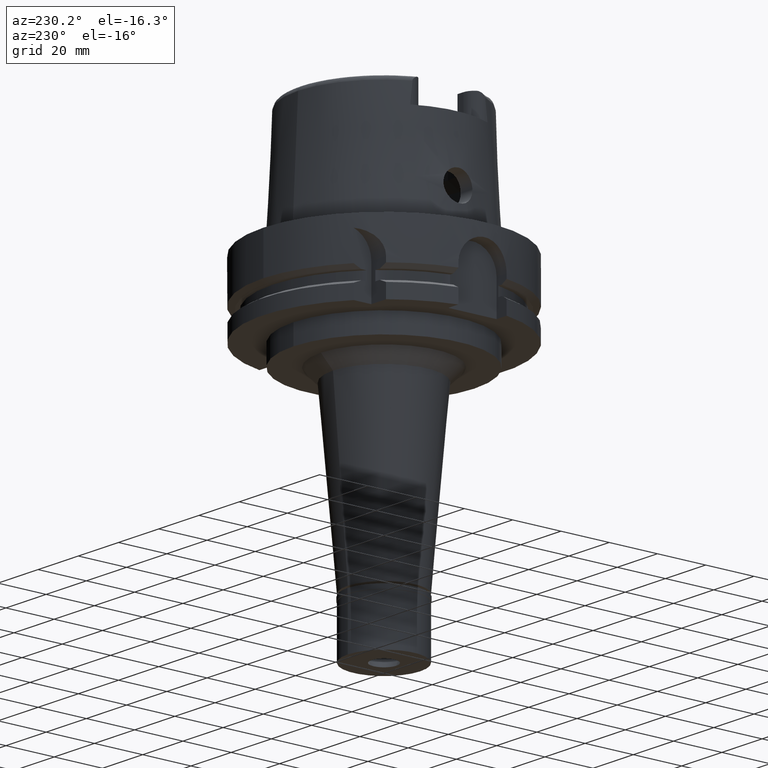
[diagram: clean part render]
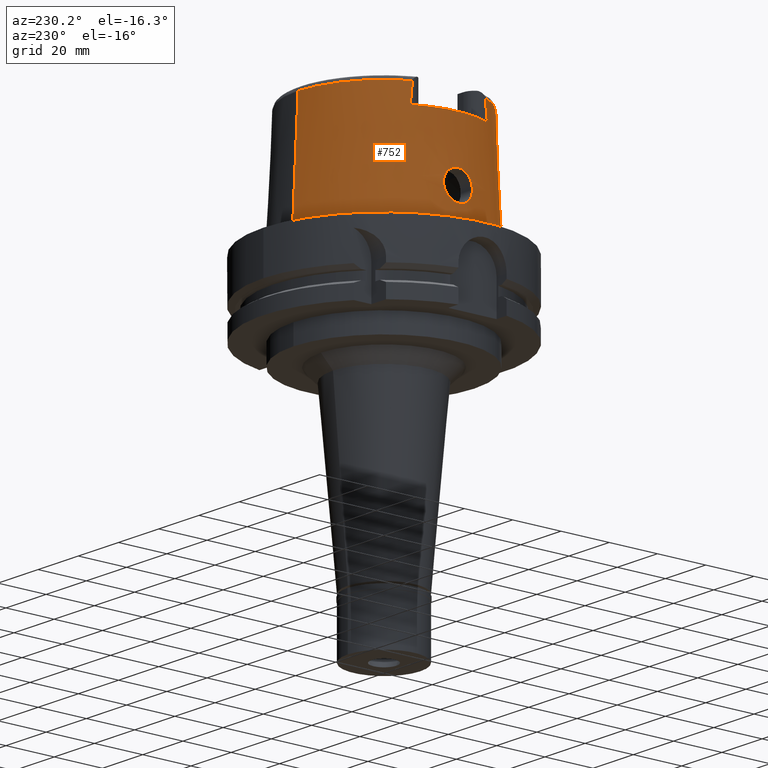
[diagram: same view with one face highlighted and labeled with its STEP entity id]
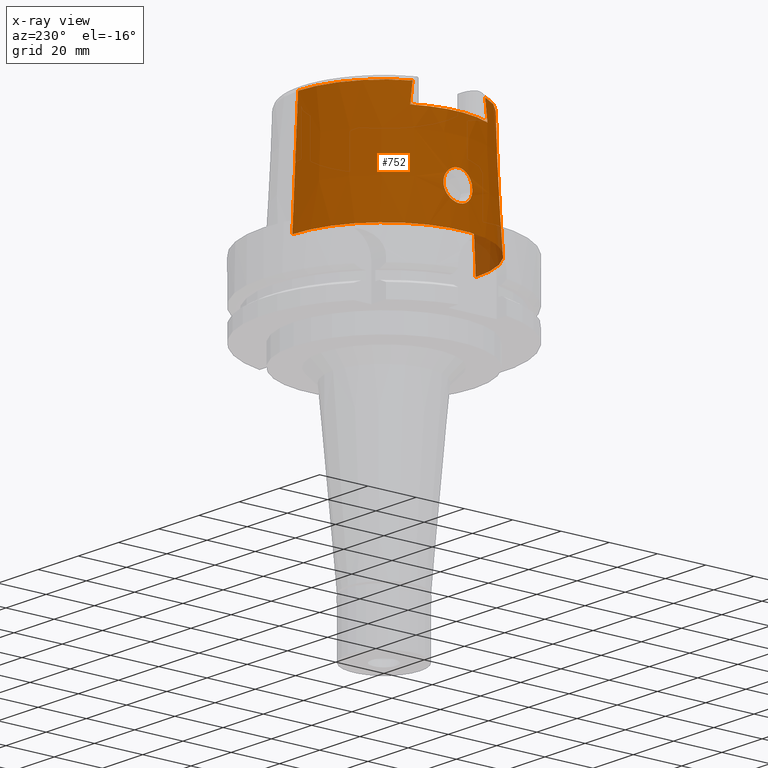
[diagram: x-ray of the same camera — body ghosted, the highlighted face saturated]
A machine part, auxiliary view. The second image highlights one B-rep face of the part: STEP entity #752.
The next image is the same camera in x-ray: the body ghosted, the highlighted face saturated — about 3% of this face is hidden behind the body in this view.
In plain terms, the highlighted conical surface has half-angle 2.862 deg.
Its self-contained STEP definition (entity closure, byte-faithful):
#2 = CARTESIAN_POINT ( 'NONE',  ( -36.90481212202828942, 2.213017015193649240, 20.57707526478865034 ) ) ;
#83 = FACE_OUTER_BOUND ( 'NONE', #288, .T. ) ;
#88 = CARTESIAN_POINT ( 'NONE',  ( -37.31741571978165695, -3.598214547009094932, 10.19462941988702553 ) ) ;
#91 = CARTESIAN_POINT ( 'NONE',  ( -36.86978944967720651, 5.813435440290711576, 13.50148772606871006 ) ) ;
#111 = DIRECTION ( 'NONE',  ( 0.0000000000000000000, 0.0000000000000000000, 1.000000000000000000 ) ) ;
#115 = CARTESIAN_POINT ( 'NONE',  ( -36.93090540727234128, 5.616884504841480386, 12.88920794889838817 ) ) ;
#144 = CARTESIAN_POINT ( 'NONE',  ( -37.07783556627382637, 5.011406950699154983, 11.70060644770868663 ) ) ;
#175 = VERTEX_POINT ( 'NONE', #1553 ) ;
#176 = CARTESIAN_POINT ( 'NONE',  ( -37.17951738003090156, 4.485048633861581813, 11.01234580963012277 ) ) ;
#191 = CARTESIAN_POINT ( 'NONE',  ( -0.002482252536761000127, -35.59494263424999616, 48.09987853799000135 ) ) ;
#193 = CARTESIAN_POINT ( 'NONE',  ( -36.76465636133605130, -6.000010175707378046, 14.97902396965996630 ) ) ;
#197 = CARTESIAN_POINT ( 'NONE',  ( -36.80183279211876624, 4.126309752871399894, 19.35635293013562830 ) ) ;
#210 = ORIENTED_EDGE ( 'NONE', *, *, #547, .F. ) ;
#215 = CARTESIAN_POINT ( 'NONE',  ( -36.74425309224630354, -5.999826609767888286, 15.38207182257049332 ) ) ;
#249 = CARTESIAN_POINT ( 'NONE',  ( -36.88084531410436995, -2.757777458081136945, 20.32957532073009688 ) ) ;
#255 = CARTESIAN_POINT ( 'NONE',  ( -37.37937778061014882, 3.098023693041446869, 9.857887865745889044 ) ) ;
#278 = CARTESIAN_POINT ( 'NONE',  ( -36.94998175923000616, 0.0000000000000000000, 21.00000000000000000 ) ) ;
#288 = EDGE_LOOP ( 'NONE', ( #5145, #3509, #3070, #4621, #2814, #847, #5060, #4590 ) ) ;
#295 = CARTESIAN_POINT ( 'NONE',  ( -32.24999876011999334, -15.99794043148000000, 40.00000000000000000 ) ) ;
#303 = CARTESIAN_POINT ( 'NONE',  ( -37.03927165331953120, -5.187383057074109516, 11.97837676321351097 ) ) ;
#309 = CARTESIAN_POINT ( 'NONE',  ( -37.21451943619346281, 4.281912244114014499, 10.79697969299898297 ) ) ;
#435 = CARTESIAN_POINT ( 'NONE',  ( 0.0000000000000000000, 0.0000000000000000000, 48.09987853799000135 ) ) ;
#455 = VERTEX_POINT ( 'NONE', #632 ) ;
#466 = CARTESIAN_POINT ( 'NONE',  ( -36.90151584517033001, 2.293784763427341389, 20.54423824638407936 ) ) ;
#504 = DIRECTION ( 'NONE',  ( -0.8958345712659759874, -0.4443876921390880197, 0.0000000000000000000 ) ) ;
#519 = CARTESIAN_POINT ( 'NONE',  ( -37.33673188455455971, -3.450205483366418413, 10.08837727827708086 ) ) ;
#544 = CARTESIAN_POINT ( 'NONE',  ( -37.24642140576022342, -4.085056662499261471, 10.60482271683911826 ) ) ;
#547 = EDGE_CURVE ( 'NONE', #1385, #2088, #2736, .T. ) ;
#551 = CARTESIAN_POINT ( 'NONE',  ( -36.72096570797489790, 5.487009220000400589, 17.42817704385699784 ) ) ;
#571 = CARTESIAN_POINT ( 'NONE',  ( -32.24999999999000266, 15.99793480980999938, 40.00000000000000000 ) ) ;
#576 = CARTESIAN_POINT ( 'NONE',  ( -36.81707470369828883, 3.888462359690824766, 19.57050962130524141 ) ) ;
#603 = CARTESIAN_POINT ( 'NONE',  ( -37.10415664518939849, 4.886478532561751464, 11.51269697407143511 ) ) ;
#632 = CARTESIAN_POINT ( 'NONE',  ( 1.065814103639999922E-14, -35.59494289391000166, 48.09987853799000135 ) ) ;
#634 = CARTESIAN_POINT ( 'NONE',  ( -36.71471456864567529, 5.699753134266103416, 16.91699426556954222 ) ) ;
#649 = CARTESIAN_POINT ( 'NONE',  ( -32.25000136840999687, 15.06443227464000145, 48.09991928443000120 ) ) ;
#650 = CARTESIAN_POINT ( 'NONE',  ( -36.81166544042716993, -3.967352441902773474, 19.50541949587088908 ) ) ;
#655 = CARTESIAN_POINT ( 'NONE',  ( -36.72592931294867924, 5.363986404352964144, 17.68999692536511503 ) ) ;
#673 = CARTESIAN_POINT ( 'NONE',  ( -36.85895327318213077, -3.184123311498813447, 20.08897837388275320 ) ) ;
#708 = CARTESIAN_POINT ( 'NONE',  ( -36.82569210796815184, -3.739649299996758547, 19.69304758883234996 ) ) ;
#735 = CARTESIAN_POINT ( 'NONE',  ( -36.76907387719483467, -4.629940892271910968, 18.81773298219310675 ) ) ;
#740 = CARTESIAN_POINT ( 'NONE',  ( 0.0000000000000000000, 0.0000000000000000000, 48.09987853799000135 ) ) ;
#752 = ADVANCED_FACE ( 'NONE', ( #83, #5157 ), #1587, .T. ) ;
#799 = CARTESIAN_POINT ( 'NONE',  ( -37.42962430663695983, 2.606670153497478548, 9.595083729181816068 ) ) ;
#827 = DIRECTION ( 'NONE',  ( 0.0000000000000000000, 0.0000000000000000000, -1.000000000000000000 ) ) ;
#831 = CARTESIAN_POINT ( 'NONE',  ( -36.94592655069988041, 0.7418268910925497339, 20.96692956027106902 ) ) ;
#847 = ORIENTED_EDGE ( 'NONE', *, *, #2117, .T. ) ;
#855 = CARTESIAN_POINT ( 'NONE',  ( -36.90819410257977040, 2.127440404438942778, 20.61059792254456013 ) ) ;
#888 = CARTESIAN_POINT ( 'NONE',  ( -36.94998175923000616, 0.0000000000000000000, 21.00000000000000000 ) ) ;
#910 = LINE ( 'NONE', #5107, #1224 ) ;
#916 = CARTESIAN_POINT ( 'NONE',  ( -36.94998175923000616, 0.3633343511843775686, 21.00000000000000355 ) ) ;
#935 = CARTESIAN_POINT ( 'NONE',  ( -37.39378689195451955, -2.962903605545284869, 9.781628930397712196 ) ) ;
#968 = CARTESIAN_POINT ( 'NONE',  ( -37.28497002801623950, -3.828596139556150746, 10.37922785837620232 ) ) ;
#977 = CARTESIAN_POINT ( 'NONE',  ( -36.77250120513021159, 4.561768183528279508, 18.92249517157573990 ) ) ;
#1001 = CARTESIAN_POINT ( 'NONE',  ( -32.25000000000000000, 15.68473281791890273, 42.78334884215939127 ) ) ;
#1002 = CARTESIAN_POINT ( 'NONE',  ( -37.20106974145036816, -4.365398241596055051, 10.87905061059032086 ) ) ;
#1004 = CARTESIAN_POINT ( 'NONE',  ( -36.85115002955430441, 3.314589940445006100, 20.00136942792912009 ) ) ;
#1025 = CARTESIAN_POINT ( 'NONE',  ( -37.40298363509940316, -2.876054930460152370, 9.733325670144925112 ) ) ;
#1028 = CARTESIAN_POINT ( 'NONE',  ( -36.98675800681352399, 5.409926772540646134, 12.39781190213641615 ) ) ;
#1046 = CARTESIAN_POINT ( 'NONE',  ( -37.35834421733354560, -3.272734895007594957, 9.971133218841449875 ) ) ;
#1051 = CARTESIAN_POINT ( 'NONE',  ( -36.75863114226014261, 5.999203095768120164, 15.10061616559211828 ) ) ;
#1076 = CARTESIAN_POINT ( 'NONE',  ( -36.74913673949377824, -4.948068977863660400, 18.39924709319845419 ) ) ;
#1080 = CARTESIAN_POINT ( 'NONE',  ( -36.85262002637672651, 5.859857457008202708, 13.69602990455283553 ) ) ;
#1098 = CARTESIAN_POINT ( 'NONE',  ( -36.71751287563558463, -5.610178844293347566, 17.12845478813441602 ) ) ;
#1123 = CARTESIAN_POINT ( 'NONE',  ( -36.89913305053458004, -2.351021621897003033, 20.52046221773206724 ) ) ;
#1156 = CARTESIAN_POINT ( 'NONE',  ( -36.98979125698586046, -5.395871564807570131, 12.37280282713265223 ) ) ;
#1187 = CARTESIAN_POINT ( 'NONE',  ( -36.78439045940561414, -4.391641264610769646, 19.08890806823644581 ) ) ;
#1193 = CARTESIAN_POINT ( 'NONE',  ( -37.45590786071876721, 2.307264952192235707, 9.461350077846516271 ) ) ;
#1218 = CARTESIAN_POINT ( 'NONE',  ( -37.45427180563660841, 2.327007297614411829, 9.469615604984163326 ) ) ;
#1224 = VECTOR ( 'NONE', #3071, 1000.000000000000227 ) ;
#1264 = CARTESIAN_POINT ( 'NONE',  ( -36.92869191444687260, 1.515938811514356832, 20.80892011274235642 ) ) ;
#1313 = CARTESIAN_POINT ( 'NONE',  ( -36.90182516789367639, 2.286310191646476309, 20.54732631834612988 ) ) ;
#1347 = CARTESIAN_POINT ( 'NONE',  ( -36.87470792679215492, 2.875780184884942692, 20.26683800148420289 ) ) ;
#1369 = CARTESIAN_POINT ( 'NONE',  ( -37.51949961489126650, -1.326669355640335501, 9.145276219901143477 ) ) ;
#1385 = VERTEX_POINT ( 'NONE', #2524 ) ;
#1397 = CARTESIAN_POINT ( 'NONE',  ( -36.72418265832613571, 5.403812981402833948, 17.60896040265804174 ) ) ;
#1402 = AXIS2_PLACEMENT_3D ( 'NONE', #435, #2145, #3921 ) ;
#1419 = CIRCLE ( 'NONE', #4021, 38.00001658251999714 ) ;
#1426 = CARTESIAN_POINT ( 'NONE',  ( -37.23047054825631363, -4.185164271324918417, 10.70062829914716218 ) ) ;
#1431 = CARTESIAN_POINT ( 'NONE',  ( -36.75573599167525884, 4.821397126983945292, 18.59278017141346595 ) ) ;
#1442 = EDGE_CURVE ( 'NONE', #4922, #2890, #4294, .T. ) ;
#1455 = CARTESIAN_POINT ( 'NONE',  ( -37.44476799395761191, -2.444769973920412731, 9.517628049870827667 ) ) ;
#1458 = CARTESIAN_POINT ( 'NONE',  ( -36.90778291331382377, 5.695514094662798676, 13.11004296810558145 ) ) ;
#1473 = CARTESIAN_POINT ( 'NONE',  ( -37.42917407891200554, -2.616488117632115973, 9.597020102813237585 ) ) ;
#1476 = CARTESIAN_POINT ( 'NONE',  ( -37.21013768353900986, 4.307808567328645921, 10.82341640379223158 ) ) ;
#1488 = EDGE_CURVE ( 'NONE', #4922, #4707, #5183, .T. ) ;
#1497 = CARTESIAN_POINT ( 'NONE',  ( -36.86957045517831943, -5.819838181744009908, 13.48827075201232795 ) ) ;
#1503 = CARTESIAN_POINT ( 'NONE',  ( -36.74233821895531094, 5.981426661172993597, 15.48142517636904536 ) ) ;
#1523 = CARTESIAN_POINT ( 'NONE',  ( -37.00617004464398008, -5.328235209011662477, 12.23962012597444549 ) ) ;
#1546 = CARTESIAN_POINT ( 'NONE',  ( -36.71907190465667270, -5.546781404989232556, 17.28762775728450407 ) ) ;
#1553 = CARTESIAN_POINT ( 'NONE',  ( -32.25000136840999687, 15.06443227464000145, 48.09991928443000120 ) ) ;
#1574 = CARTESIAN_POINT ( 'NONE',  ( -36.96298782550960027, -5.499943270910540249, 12.60182093242452694 ) ) ;
#1587 = CONICAL_SURFACE ( 'NONE', #2663, 36.79747973821000073, 0.04996004983832824653 ) ;
#1602 = CIRCLE ( 'NONE', #4752, 35.59494289391000166 ) ;
#1608 = CARTESIAN_POINT ( 'NONE',  ( -37.09627584569496861, -4.924530700106688919, 11.57096212484753472 ) ) ;
#1735 = CARTESIAN_POINT ( 'NONE',  ( -36.90307955002446505, 2.255778644384665466, 20.55983517337653055 ) ) ;
#1787 = CARTESIAN_POINT ( 'NONE',  ( -37.46227104965394261, -2.228982628449993619, 9.429380950015074703 ) ) ;
#1818 = CARTESIAN_POINT ( 'NONE',  ( -36.92309639214629868, 5.643817985522994185, 12.96283944115476494 ) ) ;
#1841 = B_SPLINE_CURVE_WITH_KNOTS ( 'NONE', 3,
 ( #888, #916, #831, #2181, #1264, #2120, #3021, #855, #2, #1735, #5167, #1313, #466, #3900, #3475, #1347, #4768, #4351, #2206, #2284, #1875, #1004, #3593, #5335, #3101, #576, #4877, #197, #2760, #4822, #3636, #2339, #977, #1431, #4065, #3137, #655, #1397, #4855, #551, #2780, #1920, #4481, #1896, #634, #2685, #5360, #2361, #1503, #3180, #4904, #1051, #4503, #3208, #4008, #4933, #1080, #91, #5314, #1458, #1818, #115, #3530, #5256, #4403, #2260, #3160, #3982, #1028, #1842, #2733, #3558, #5283, #2712, #4427, #144, #4449, #603, #2315, #4043, #176, #3615, #1476, #309, #5418, #4112, #1945, #2805, #255, #2064, #2389, #799, #4649, #3749, #5391, #1218, #1193, #4561, #4616, #1972, #3686 ),
 .UNSPECIFIED., .F., .F.,
 ( 4, 2, 2, 1, 1, 1, 1, 2, 2, 2, 2, 1, 1, 2, 2, 2, 1, 1, 1, 2, 2, 2, 2, 2, 1, 1, 2, 2, 2, 2, 1, 1, 2, 2, 2, 2, 2, 1, 1, 1, 2, 2, 2, 2, 1, 1, 2, 2, 2, 1, 1, 1, 2, 2, 2, 2, 2, 1, 1, 2, 2, 4 ),
 ( 0.0000000000000000000, 0.06250000000001529332, 0.09375000000002293998, 0.1093750000000268535, 0.1171875000000288103, 0.1210937500000298511, 0.1230468750000303646, 0.1240234375000306144, 0.1250000000000308642, 0.1562500000000406897, 0.1718750000000455469, 0.1796875000000478784, 0.1835937500000490996, 0.1855468750000497102, 0.1875000000000503209, 0.2187500000000602851, 0.2343750000000654476, 0.2421875000000678346, 0.2460937500000690004, 0.2480468750000693612, 0.2500000000000697220, 0.3125000000000770495, 0.3437500000000806577, 0.3593750000000822120, 0.3671875000000830447, 0.3710937500000834333, 0.3730468750000836553, 0.3750000000000839329, 0.4375000000000890399, 0.4687500000000918710, 0.4843750000000933142, 0.4921875000000939249, 0.4960937500000943690, 0.5000000000000948130, 0.5625000000001000311, 0.5937500000001026956, 0.6093750000001039169, 0.6171875000001043610, 0.6210937500001046940, 0.6230468750001048051, 0.6240234375001046940, 0.6250000000001045830, 0.6562500000000971445, 0.6718750000000933698, 0.6796875000000913714, 0.6835937500000903722, 0.6855468750000899281, 0.6875000000000894840, 0.7187500000000812683, 0.7343750000000772715, 0.7421875000000751621, 0.7460937500000740519, 0.7480468750000736078, 0.7500000000000730527, 0.8125000000000554001, 0.8437500000000466294, 0.8593750000000421885, 0.8671875000000398570, 0.8710937500000388578, 0.8730468750000383027, 0.8750000000000377476, 1.000000000000000000 ),
 .UNSPECIFIED. ) ;
#1842 = CARTESIAN_POINT ( 'NONE',  ( -37.01958182055304292, 5.273390041480133128, 12.13625592699925804 ) ) ;
#1875 = CARTESIAN_POINT ( 'NONE',  ( -36.85249261967008749, 3.290821691172912455, 20.01704048467112784 ) ) ;
#1896 = CARTESIAN_POINT ( 'NONE',  ( -36.71923439782175080, 5.541370929820002900, 17.30073172552537386 ) ) ;
#1915 = CARTESIAN_POINT ( 'NONE',  ( -36.71654546834788846, -5.671105701956928868, 16.96370689756387762 ) ) ;
#1920 = CARTESIAN_POINT ( 'NONE',  ( -36.71958454006488637, 5.529665554892843282, 17.32871516916141275 ) ) ;
#1937 = CARTESIAN_POINT ( 'NONE',  ( -36.71987496545433771, -5.850812805661124827, 16.34399262884469550 ) ) ;
#1945 = CARTESIAN_POINT ( 'NONE',  ( -37.27367116245549994, 3.929418689306150902, 10.44345896865576151 ) ) ;
#1969 = CARTESIAN_POINT ( 'NONE',  ( -36.89322971212627067, -2.487854710357016330, 20.46013981099742551 ) ) ;
#1972 = CARTESIAN_POINT ( 'NONE',  ( -37.55000165825001091, 0.7487041709568357239, 9.000000000000015987 ) ) ;
#1996 = CARTESIAN_POINT ( 'NONE',  ( -36.71866244795705825, -5.561616380121718883, 17.25137765374299548 ) ) ;
#2024 = CARTESIAN_POINT ( 'NONE',  ( -36.80824963654098525, -5.957369194758132203, 14.26146559990327134 ) ) ;
#2064 = CARTESIAN_POINT ( 'NONE',  ( -37.39741852897850549, 2.932610985054572961, 9.762285463661040552 ) ) ;
#2088 = VERTEX_POINT ( 'NONE', #2961 ) ;
#2117 = EDGE_CURVE ( 'NONE', #455, #4707, #1602, .T. ) ;
#2120 = CARTESIAN_POINT ( 'NONE',  ( -36.91956769525410920, 1.809251688474511344, 20.72162688113019868 ) ) ;
#2145 = DIRECTION ( 'NONE',  ( 0.0000000000000000000, 0.0000000000000000000, -1.000000000000000000 ) ) ;
#2181 = CARTESIAN_POINT ( 'NONE',  ( -36.93376092510951025, 1.321016029018047044, 20.85606997306840782 ) ) ;
#2206 = CARTESIAN_POINT ( 'NONE',  ( -36.85906651102180831, 3.172800658790462691, 20.09300834552679049 ) ) ;
#2257 = CARTESIAN_POINT ( 'NONE',  ( -37.23531275889555303, -4.155081588630886280, 10.67141402559644625 ) ) ;
#2260 = CARTESIAN_POINT ( 'NONE',  ( -36.94846100837501979, 5.553904565810981353, 12.72971633434607419 ) ) ;
#2281 = CARTESIAN_POINT ( 'NONE',  ( -37.35637377192750819, -3.289034839281954170, 9.981803901745633922 ) ) ;
#2284 = CARTESIAN_POINT ( 'NONE',  ( -36.85449304749918298, 3.255246567606231434, 20.04031410330112450 ) ) ;
#2302 = VECTOR ( 'NONE', #4037, 1000.000000000000227 ) ;
#2315 = CARTESIAN_POINT ( 'NONE',  ( -37.12727146987303684, 4.769054487374885021, 11.35375890265270193 ) ) ;
#2336 = CARTESIAN_POINT ( 'NONE',  ( -36.90766817250683829, -5.704271903478608685, 13.09078779885867583 ) ) ;
#2339 = CARTESIAN_POINT ( 'NONE',  ( -36.79427218753109230, 4.239704894876020980, 19.24559695626414069 ) ) ;
#2357 = CARTESIAN_POINT ( 'NONE',  ( -36.83993683738832914, -3.504082000582460665, 19.87071118756659160 ) ) ;
#2361 = CARTESIAN_POINT ( 'NONE',  ( -36.73240754961656052, 5.953698170297379910, 15.76838695377389499 ) ) ;
#2381 = CARTESIAN_POINT ( 'NONE',  ( -36.86794564297266419, -3.018056937589299160, 20.18942875006605675 ) ) ;
#2389 = CARTESIAN_POINT ( 'NONE',  ( -37.42189583881219050, 2.687751992891608932, 9.634885424041069513 ) ) ;
#2414 = CARTESIAN_POINT ( 'NONE',  ( -36.93371017244746213, -1.519459685232700030, 20.86596265396956440 ) ) ;
#2427 = EDGE_CURVE ( 'NONE', #175, #2890, #4964, .T. ) ;
#2442 = CARTESIAN_POINT ( 'NONE',  ( -36.72261435197896162, -5.423340057104486078, 17.58623227444850201 ) ) ;
#2502 = VERTEX_POINT ( 'NONE', #3091 ) ;
#2524 = CARTESIAN_POINT ( 'NONE',  ( -37.55000165825000380, 1.432651546991000008E-13, 9.000000000000000000 ) ) ;
#2541 = EDGE_LOOP ( 'NONE', ( #3048, #210 ) ) ;
#2578 = AXIS2_PLACEMENT_3D ( 'NONE', #3432, #5151, #504 ) ;
#2656 = CIRCLE ( 'NONE', #1402, 35.59494289391000166 ) ;
#2663 = AXIS2_PLACEMENT_3D ( 'NONE', #3522, #3069, #3868 ) ;
#2679 = CARTESIAN_POINT ( 'NONE',  ( -37.25561765514099477, -4.025400648453117292, 10.55039906839282082 ) ) ;
#2680 = CARTESIAN_POINT ( 'NONE',  ( 0.0000000000000000000, 0.0000000000000000000, 1.023181539494999863E-12 ) ) ;
#2685 = CARTESIAN_POINT ( 'NONE',  ( -36.71620628969250077, 5.813425634901710382, 16.53510080232098289 ) ) ;
#2712 = CARTESIAN_POINT ( 'NONE',  ( -37.06968726043542262, 5.049683055661776443, 11.75931128050524421 ) ) ;
#2733 = CARTESIAN_POINT ( 'NONE',  ( -37.03109343685939336, 5.223999305576039198, 12.04686011469446605 ) ) ;
#2736 = B_SPLINE_CURVE_WITH_KNOTS ( 'NONE', 3,
 ( #3096, #3590, #4815, #1369, #3157, #5278, #3975, #5310, #3526, #1787, #3502, #4873, #1455, #1473, #1025, #935, #3179, #4899, #3073, #1046, #2281, #4788, #4371, #519, #88, #968, #4399, #2679, #544, #2257, #1426, #3133, #4853, #1002, #4424, #5471, #3741, #2831, #1608, #4165, #303, #1523, #1156, #5412, #1574, #3631, #4553, #2336, #1497, #3683, #2024, #3202, #4062, #4928, #4952, #4585, #3708, #193, #215, #3231, #1937, #3323, #3258, #1915, #1098, #4107, #1996, #5356, #2800, #1546, #2442, #5016, #1076, #5045, #735, #2778, #3660, #1187, #5387, #2894, #4499, #5439, #4612, #650, #708, #4520, #2357, #2862, #4080, #673, #2381, #249, #3289, #1969, #4982, #1123, #2414, #4136, #278 ),
 .UNSPECIFIED., .F., .F.,
 ( 4, 2, 2, 1, 1, 1, 2, 2, 2, 2, 1, 1, 1, 2, 2, 2, 2, 1, 1, 2, 2, 2, 2, 2, 2, 1, 1, 2, 2, 2, 2, 2, 1, 2, 2, 2, 2, 1, 1, 1, 1, 2, 2, 2, 2, 2, 1, 1, 2, 2, 2, 1, 2, 2, 2, 1, 2, 2, 4 ),
 ( 0.0000000000000000000, 0.06250000000001050549, 0.09375000000001579292, 0.1093750000000184297, 0.1171875000000196648, 0.1210937500000202477, 0.1230468750000205669, 0.1250000000000208999, 0.1562500000000271450, 0.1718750000000302536, 0.1796875000000316969, 0.1835937500000325018, 0.1855468750000327516, 0.1865234375000328904, 0.1875000000000330291, 0.2187500000000375533, 0.2343750000000398015, 0.2421875000000409395, 0.2460937500000415223, 0.2480468750000417166, 0.2500000000000419109, 0.2812500000000473510, 0.2968750000000501266, 0.3125000000000529021, 0.3437500000000588418, 0.3593750000000617839, 0.3671875000000632272, 0.3710937500000639488, 0.3750000000000646705, 0.4375000000000767719, 0.4687500000000828226, 0.4843750000000857647, 0.4921875000000872080, 0.4960937500000878186, 0.5000000000000883738, 0.5625000000001008083, 0.5937500000001066924, 0.6093750000001094680, 0.6171875000001104672, 0.6210937500001110223, 0.6230468750001112443, 0.6240234375001113554, 0.6250000000001113554, 0.6875000000000930367, 0.7187500000000835998, 0.7343750000000787148, 0.7421875000000762723, 0.7460937500000752731, 0.7480468750000746070, 0.7500000000000738298, 0.7812500000000649480, 0.7968750000000603961, 0.8046875000000581757, 0.8125000000000559552, 0.8437500000000460743, 0.8593750000000413003, 0.8671875000000389688, 0.8750000000000366374, 1.000000000000000000 ),
 .UNSPECIFIED. ) ;
#2760 = CARTESIAN_POINT ( 'NONE',  ( -36.79772359762679912, 4.188258709844017602, 19.29645780671580724 ) ) ;
#2778 = CARTESIAN_POINT ( 'NONE',  ( -36.77356200053083057, -4.559721913172399610, 18.90145766989485310 ) ) ;
#2780 = CARTESIAN_POINT ( 'NONE',  ( -36.71997215209228926, 5.517097794730376314, 17.35848397283552913 ) ) ;
#2800 = CARTESIAN_POINT ( 'NONE',  ( -36.71898951831816760, -5.549692760493194044, 17.28055914737093346 ) ) ;
#2805 = CARTESIAN_POINT ( 'NONE',  ( -37.32008791006747117, 3.595582967656921536, 10.18045073287411917 ) ) ;
#2814 = ORIENTED_EDGE ( 'NONE', *, *, #5082, .F. ) ;
#2819 = CARTESIAN_POINT ( 'NONE',  ( -32.25000000000000000, -15.68478778504294269, 42.78313263863653759 ) ) ;
#2831 = CARTESIAN_POINT ( 'NONE',  ( -37.10825208890300075, -4.866224946813120233, 11.48864895143352527 ) ) ;
#2862 = CARTESIAN_POINT ( 'NONE',  ( -36.84473700002342156, -3.423778257265852165, 19.92749029269119276 ) ) ;
#2890 = VERTEX_POINT ( 'NONE', #5140 ) ;
#2894 = CARTESIAN_POINT ( 'NONE',  ( -36.79082206761555085, -4.292426336304137280, 19.19228871128060732 ) ) ;
#2961 = CARTESIAN_POINT ( 'NONE',  ( -36.94998175923000616, 0.0000000000000000000, 21.00000000000000000 ) ) ;
#2984 = DIRECTION ( 'NONE',  ( 0.0000000000000000000, -1.000000000000000000, 0.0000000000000000000 ) ) ;
#3016 = EDGE_CURVE ( 'NONE', #2088, #1385, #1841, .T. ) ;
#3021 = CARTESIAN_POINT ( 'NONE',  ( -36.91462540985801866, 1.956135520956726381, 20.67384064444619085 ) ) ;
#3048 = ORIENTED_EDGE ( 'NONE', *, *, #3016, .F. ) ;
#3069 = DIRECTION ( 'NONE',  ( 0.0000000000000000000, 0.0000000000000000000, -1.000000000000000000 ) ) ;
#3070 = ORIENTED_EDGE ( 'NONE', *, *, #3182, .T. ) ;
#3071 = DIRECTION ( 'NONE',  ( -5.154182075159067383E-05, 0.04993927430816067631, -0.9987522546783135224 ) ) ;
#3073 = CARTESIAN_POINT ( 'NONE',  ( -37.36290364789287821, -3.234692291577640599, 9.946492659721222651 ) ) ;
#3091 = CARTESIAN_POINT ( 'NONE',  ( 0.0000000000000000000, 35.59494289391000166, 48.09987853799000135 ) ) ;
#3096 = CARTESIAN_POINT ( 'NONE',  ( -37.55000165825000380, 1.432651546991000008E-13, 9.000000000000000000 ) ) ;
#3101 = CARTESIAN_POINT ( 'NONE',  ( -36.83112008402385129, 3.660336320129889298, 19.75822749647834087 ) ) ;
#3133 = CARTESIAN_POINT ( 'NONE',  ( -37.22722432738948584, -4.205233213186929220, 10.72025577600969015 ) ) ;
#3137 = CARTESIAN_POINT ( 'NONE',  ( -36.73198415973008935, 5.236728929962086276, 17.93434908153870211 ) ) ;
#3157 = CARTESIAN_POINT ( 'NONE',  ( -37.50996772634164955, -1.517916805942700398, 9.191782976779125036 ) ) ;
#3160 = CARTESIAN_POINT ( 'NONE',  ( -36.94929581935767260, 5.550853718338158771, 12.72227083781877433 ) ) ;
#3179 = CARTESIAN_POINT ( 'NONE',  ( -37.37929188442612372, -3.093329339986881532, 9.858612814295135252 ) ) ;
#3180 = CARTESIAN_POINT ( 'NONE',  ( -36.74785429603426223, 5.991788563295431302, 15.33817667402803941 ) ) ;
#3182 = EDGE_CURVE ( 'NONE', #2502, #4264, #910, .T. ) ;
#3198 = VERTEX_POINT ( 'NONE', #5190 ) ;
#3202 = CARTESIAN_POINT ( 'NONE',  ( -36.78959275922441208, -5.983362716041964013, 14.54361112636943076 ) ) ;
#3208 = CARTESIAN_POINT ( 'NONE',  ( -36.76216426728290543, 5.999975011841236494, 15.02830139608301430 ) ) ;
#3221 = EDGE_CURVE ( 'NONE', #175, #2502, #2656, .T. ) ;
#3231 = CARTESIAN_POINT ( 'NONE',  ( -36.73095740675194776, -5.963563975990966881, 15.76760106655153848 ) ) ;
#3258 = CARTESIAN_POINT ( 'NONE',  ( -36.71654698900230329, -5.717721668128436185, 16.82141197731920812 ) ) ;
#3289 = CARTESIAN_POINT ( 'NONE',  ( -36.88714792878169391, -2.624847026151035490, 20.39701525129663651 ) ) ;
#3300 = CARTESIAN_POINT ( 'NONE',  ( 0.0000000000000000000, 38.00001658251999714, 1.023181539494999863E-12 ) ) ;
#3314 = CARTESIAN_POINT ( 'NONE',  ( -32.25000000000000000, -15.37363591515294559, 45.48304347431654548 ) ) ;
#3323 = CARTESIAN_POINT ( 'NONE',  ( -36.71765766617914295, -5.803523988315251181, 16.53578643641579049 ) ) ;
#3432 = CARTESIAN_POINT ( 'NONE',  ( 0.0000000000000000000, 0.0000000000000000000, 40.00000000000000000 ) ) ;
#3475 = CARTESIAN_POINT ( 'NONE',  ( -36.88758924548581319, 2.614243196485755760, 20.40411966302079705 ) ) ;
#3502 = CARTESIAN_POINT ( 'NONE',  ( -37.46039445909574539, -2.252462076750238129, 9.438833328267458356 ) ) ;
#3509 = ORIENTED_EDGE ( 'NONE', *, *, #3221, .T. ) ;
#3522 = CARTESIAN_POINT ( 'NONE',  ( 0.0000000000000000000, 0.0000000000000000000, 24.04993926899999934 ) ) ;
#3526 = CARTESIAN_POINT ( 'NONE',  ( -37.46506359512747508, -2.193740914276881337, 9.415322794441296494 ) ) ;
#3530 = CARTESIAN_POINT ( 'NONE',  ( -36.94028240741158697, 5.583528794093794545, 12.80331479909834513 ) ) ;
#3558 = CARTESIAN_POINT ( 'NONE',  ( -37.04921637890868880, 5.143439223290569018, 11.91004305239920136 ) ) ;
#3590 = CARTESIAN_POINT ( 'NONE',  ( -37.55000165825000380, -0.3726374855603786229, 8.999999999999992895 ) ) ;
#3593 = CARTESIAN_POINT ( 'NONE',  ( -36.85037698645344761, 3.328206183194143630, 19.99231360483711128 ) ) ;
#3615 = CARTESIAN_POINT ( 'NONE',  ( -37.19992101759380176, 4.367660906947724797, 10.88565932793949464 ) ) ;
#3631 = CARTESIAN_POINT ( 'NONE',  ( -36.95767157685659043, -5.519952345145066275, 12.64824216154835135 ) ) ;
#3636 = CARTESIAN_POINT ( 'NONE',  ( -36.79478727942417038, 4.232057162961379682, 19.25321568890180757 ) ) ;
#3660 = CARTESIAN_POINT ( 'NONE',  ( -36.78071143203128912, -4.448628628623183090, 19.02651366487880225 ) ) ;
#3683 = CARTESIAN_POINT ( 'NONE',  ( -36.82234028986535890, -5.930763000256979112, 14.06994049652211309 ) ) ;
#3686 = CARTESIAN_POINT ( 'NONE',  ( -37.55000165825000380, 1.432651546991000008E-13, 9.000000000000000000 ) ) ;
#3708 = CARTESIAN_POINT ( 'NONE',  ( -36.76576510501891448, -5.999892818502924108, 14.95756549144537217 ) ) ;
#3741 = CARTESIAN_POINT ( 'NONE',  ( -37.13160339691511069, -4.748163477468584581, 11.33057565679728462 ) ) ;
#3749 = CARTESIAN_POINT ( 'NONE',  ( -37.44588294117820482, 2.426131748468640215, 9.512087964606299906 ) ) ;
#3868 = DIRECTION ( 'NONE',  ( 0.0000000000000000000, -1.000000000000000000, 0.0000000000000000000 ) ) ;
#3900 = CARTESIAN_POINT ( 'NONE',  ( -36.89502843121197628, 2.450031343028900022, 20.47943889317370392 ) ) ;
#3921 = DIRECTION ( 'NONE',  ( -0.9060276961631030801, 0.4232183996300014628, 0.0000000000000000000 ) ) ;
#3975 = CARTESIAN_POINT ( 'NONE',  ( -37.48351673561649022, -1.946035754585882183, 9.322800359140533288 ) ) ;
#3982 = CARTESIAN_POINT ( 'NONE',  ( -36.96715684455987372, 5.485453914875233927, 12.56328390770204528 ) ) ;
#4008 = CARTESIAN_POINT ( 'NONE',  ( -36.78139137801692726, 6.000350230514401417, 14.64774765227994457 ) ) ;
#4021 = AXIS2_PLACEMENT_3D ( 'NONE', #2680, #111, #4816 ) ;
#4037 = DIRECTION ( 'NONE',  ( 5.154182075151068004E-05, -0.04993927430816067631, -0.9987522546783135224 ) ) ;
#4043 = CARTESIAN_POINT ( 'NONE',  ( -37.16207945239545296, 4.581602103260997261, 11.12460829356848535 ) ) ;
#4062 = CARTESIAN_POINT ( 'NONE',  ( -36.78378698389722956, -5.989709011900352209, 14.63680624037035294 ) ) ;
#4065 = CARTESIAN_POINT ( 'NONE',  ( -36.73710723480265727, 5.141511196371232550, 18.09892683386312129 ) ) ;
#4080 = CARTESIAN_POINT ( 'NONE',  ( -36.84722207464891852, -3.382018759245091211, 19.95623047251199722 ) ) ;
#4107 = CARTESIAN_POINT ( 'NONE',  ( -36.71823887462554836, -5.578077116267464497, 17.21046740391354746 ) ) ;
#4112 = CARTESIAN_POINT ( 'NONE',  ( -37.21869840650389705, 4.257124810877334298, 10.77186968054086513 ) ) ;
#4136 = CARTESIAN_POINT ( 'NONE',  ( -36.94998175923001327, -0.7276195127734239598, 21.00000000000000000 ) ) ;
#4165 = CARTESIAN_POINT ( 'NONE',  ( -37.06179810358225524, -5.086043201752845633, 11.81105377718636618 ) ) ;
#4264 = VERTEX_POINT ( 'NONE', #3300 ) ;
#4294 = CIRCLE ( 'NONE', #2578, 35.99995025243999436 ) ;
#4351 = CARTESIAN_POINT ( 'NONE',  ( -36.86282513447784481, 3.103171267689629254, 20.13548180534220933 ) ) ;
#4371 = CARTESIAN_POINT ( 'NONE',  ( -37.35426506130991697, -3.306406933631658163, 9.993234528194850697 ) ) ;
#4399 = CARTESIAN_POINT ( 'NONE',  ( -37.27357622332673515, -3.906770203459272395, 10.44496521397829980 ) ) ;
#4403 = CARTESIAN_POINT ( 'NONE',  ( -36.94708971282034327, 5.558902176570362563, 12.74198085925021395 ) ) ;
#4424 = CARTESIAN_POINT ( 'NONE',  ( -37.17803180917213979, -4.498615859945629403, 11.02490490403962120 ) ) ;
#4427 = CARTESIAN_POINT ( 'NONE',  ( -37.07456554996859666, 5.026805462619006626, 11.72411473348027222 ) ) ;
#4449 = CARTESIAN_POINT ( 'NONE',  ( -37.07969329702336836, 5.002619226938829655, 11.68730426425536884 ) ) ;
#4481 = CARTESIAN_POINT ( 'NONE',  ( -36.71933462041030793, 5.537971924230940424, 17.30889204045590901 ) ) ;
#4493 = EDGE_CURVE ( 'NONE', #4264, #3198, #1419, .T. ) ;
#4499 = CARTESIAN_POINT ( 'NONE',  ( -36.79213533642709422, -4.272198929624869912, 19.21289980856893820 ) ) ;
#4503 = CARTESIAN_POINT ( 'NONE',  ( -36.76092878662780095, 5.999810639198247308, 15.05323242259924754 ) ) ;
#4520 = CARTESIAN_POINT ( 'NONE',  ( -36.83276774513267782, -3.623490642264464157, 19.78406176044913778 ) ) ;
#4541 = CARTESIAN_POINT ( 'NONE',  ( -32.24999491821000674, -15.06448482180999981, 48.09973250704000236 ) ) ;
#4553 = CARTESIAN_POINT ( 'NONE',  ( -36.95517112139990701, -5.529271097373444022, 12.67021907975203732 ) ) ;
#4561 = CARTESIAN_POINT ( 'NONE',  ( -37.45656041800899771, 2.299349487565208516, 9.458054992139432571 ) ) ;
#4585 = CARTESIAN_POINT ( 'NONE',  ( -36.76815151295963346, -5.999400473475983375, 14.91220205073367921 ) ) ;
#4590 = ORIENTED_EDGE ( 'NONE', *, *, #1442, .T. ) ;
#4604 = CARTESIAN_POINT ( 'NONE',  ( -32.24999876011999334, -15.99794043148000000, 40.00000000000000000 ) ) ;
#4612 = CARTESIAN_POINT ( 'NONE',  ( -36.80248047111734166, -4.112998324901529834, 19.37286347964653643 ) ) ;
#4616 = CARTESIAN_POINT ( 'NONE',  ( -37.51917568208801868, 1.533259125776557097, 9.142110927246124064 ) ) ;
#4621 = ORIENTED_EDGE ( 'NONE', *, *, #4493, .T. ) ;
#4649 = CARTESIAN_POINT ( 'NONE',  ( -37.44057105519439688, 2.486130949765243070, 9.539128714523497976 ) ) ;
#4664 = CARTESIAN_POINT ( 'NONE',  ( -32.24999491821000674, -15.06448482180999981, 48.09973250704000236 ) ) ;
#4707 = VERTEX_POINT ( 'NONE', #4664 ) ;
#4752 = AXIS2_PLACEMENT_3D ( 'NONE', #740, #827, #2984 ) ;
#4768 = CARTESIAN_POINT ( 'NONE',  ( -36.87012706387687899, 2.965479839763080161, 20.21702122656406431 ) ) ;
#4788 = CARTESIAN_POINT ( 'NONE',  ( -37.35505649638174930, -3.299900448715614498, 9.988942298963985778 ) ) ;
#4815 = CARTESIAN_POINT ( 'NONE',  ( -37.54237614741030882, -0.7536268456901423773, 9.034816427027926977 ) ) ;
#4816 = DIRECTION ( 'NONE',  ( 0.0000000000000000000, 1.000000000000000000, 0.0000000000000000000 ) ) ;
#4822 = CARTESIAN_POINT ( 'NONE',  ( -36.79596188994850081, 4.214569778894535546, 19.27054482539664804 ) ) ;
#4853 = CARTESIAN_POINT ( 'NONE',  ( -37.22538106363737143, -4.216567008149607609, 10.73142708634218145 ) ) ;
#4855 = CARTESIAN_POINT ( 'NONE',  ( -36.72197011784917464, 5.459887878419329432, 17.48829090647446804 ) ) ;
#4873 = CARTESIAN_POINT ( 'NONE',  ( -37.45935349906227430, -2.265365486308319021, 9.444079797095666251 ) ) ;
#4877 = CARTESIAN_POINT ( 'NONE',  ( -36.81004535407335254, 4.000214164705724329, 19.47384197947280526 ) ) ;
#4899 = CARTESIAN_POINT ( 'NONE',  ( -37.37186940745918662, -3.158579876911343121, 9.898236773849163228 ) ) ;
#4904 = CARTESIAN_POINT ( 'NONE',  ( -36.75525351850985345, 5.997869862927910134, 15.17175730902719977 ) ) ;
#4922 = VERTEX_POINT ( 'NONE', #295 ) ;
#4928 = CARTESIAN_POINT ( 'NONE',  ( -36.77569809657387623, -5.995963138986742713, 14.77515121863620529 ) ) ;
#4933 = CARTESIAN_POINT ( 'NONE',  ( -36.80598457918948441, 5.968596781680603591, 14.27272964943395195 ) ) ;
#4952 = CARTESIAN_POINT ( 'NONE',  ( -36.77180859682911063, -5.998273930228418038, 14.84396210823453899 ) ) ;
#4964 = B_SPLINE_CURVE_WITH_KNOTS ( 'NONE', 3,
 ( #649, #5411, #1001, #571 ),
 .UNSPECIFIED., .F., .F.,
 ( 4, 4 ),
 ( 0.0000000000000000000, 1.000000000000000000 ),
 .UNSPECIFIED. ) ;
#4982 = CARTESIAN_POINT ( 'NONE',  ( -36.89723516072645992, -2.395640620038767654, 20.50122293995661238 ) ) ;
#5016 = CARTESIAN_POINT ( 'NONE',  ( -36.73055292940741623, -5.264434876877571057, 17.90496042457968429 ) ) ;
#5045 = CARTESIAN_POINT ( 'NONE',  ( -36.75644400017984026, -4.829613120053727116, 18.56659337009865851 ) ) ;
#5060 = ORIENTED_EDGE ( 'NONE', *, *, #1488, .F. ) ;
#5082 = EDGE_CURVE ( 'NONE', #455, #3198, #5385, .T. ) ;
#5107 = CARTESIAN_POINT ( 'NONE',  ( 0.002482252536764999965, 35.59494263424999616, 48.09987853799000135 ) ) ;
#5140 = CARTESIAN_POINT ( 'NONE',  ( -32.24999999999000266, 15.99793480980999938, 40.00000000000000000 ) ) ;
#5145 = ORIENTED_EDGE ( 'NONE', *, *, #2427, .F. ) ;
#5151 = DIRECTION ( 'NONE',  ( 0.0000000000000000000, 0.0000000000000000000, -1.000000000000000000 ) ) ;
#5157 = FACE_BOUND ( 'NONE', #2541, .T. ) ;
#5167 = CARTESIAN_POINT ( 'NONE',  ( -36.90232810879536629, 2.274098502839222657, 20.55234361094722928 ) ) ;
#5183 = B_SPLINE_CURVE_WITH_KNOTS ( 'NONE', 3,
 ( #4604, #2819, #3314, #4541 ),
 .UNSPECIFIED., .F., .F.,
 ( 4, 4 ),
 ( 0.0000000000000000000, 1.000000000000000000 ),
 .UNSPECIFIED. ) ;
#5190 = CARTESIAN_POINT ( 'NONE',  ( 0.0000000000000000000, -38.00001658251999714, 6.821210263297000155E-13 ) ) ;
#5256 = CARTESIAN_POINT ( 'NONE',  ( -36.94503752810425823, 5.566363567207949892, 12.76037884047857851 ) ) ;
#5278 = CARTESIAN_POINT ( 'NONE',  ( -37.49281032695235183, -1.803539105898392059, 9.276617189271345154 ) ) ;
#5283 = CARTESIAN_POINT ( 'NONE',  ( -37.05849172933078250, 5.101540604379303012, 11.84095527412405069 ) ) ;
#5310 = CARTESIAN_POINT ( 'NONE',  ( -37.47142315201917739, -2.111358571911177595, 9.383362315019887490 ) ) ;
#5314 = CARTESIAN_POINT ( 'NONE',  ( -36.89797999598501832, 5.727083164569388707, 13.20809847103877921 ) ) ;
#5335 = CARTESIAN_POINT ( 'NONE',  ( -36.84046591234178436, 3.502085592158586280, 19.87587811475263777 ) ) ;
#5356 = CARTESIAN_POINT ( 'NONE',  ( -36.71885695949269035, -5.554473923817313974, 17.26888941779041531 ) ) ;
#5360 = CARTESIAN_POINT ( 'NONE',  ( -36.72725574981632946, 5.925867062027164067, 15.96031900149702487 ) ) ;
#5385 = LINE ( 'NONE', #191, #2302 ) ;
#5387 = CARTESIAN_POINT ( 'NONE',  ( -36.78886520335123578, -4.322580843963464758, 19.16133896108643597 ) ) ;
#5391 = CARTESIAN_POINT ( 'NONE',  ( -37.45179753697650682, 2.356661384447511054, 9.482123994536095779 ) ) ;
#5411 = CARTESIAN_POINT ( 'NONE',  ( -32.25000000000000000, 15.37357338584890520, 45.48332193696938930 ) ) ;
#5412 = CARTESIAN_POINT ( 'NONE',  ( -36.97098370057405958, -5.469535648670397876, 12.53248538697367565 ) ) ;
#5418 = CARTESIAN_POINT ( 'NONE',  ( -37.21744131163752911, 4.264593841347377179, 10.77940862725393778 ) ) ;
#5439 = CARTESIAN_POINT ( 'NONE',  ( -36.79289796750882147, -4.260458776832685146, 19.22476533604284299 ) ) ;
#5471 = CARTESIAN_POINT ( 'NONE',  ( -37.14323987895440382, -4.687183152508715089, 11.25299512755066011 ) ) ;